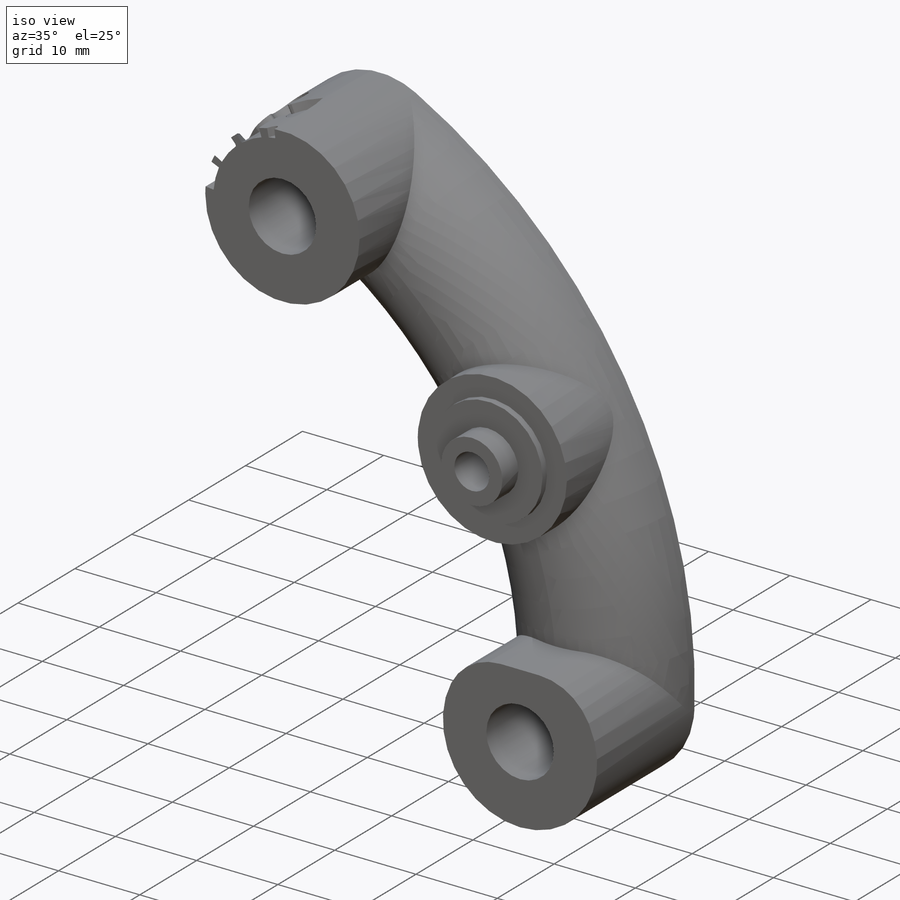
[diagram: iso view]
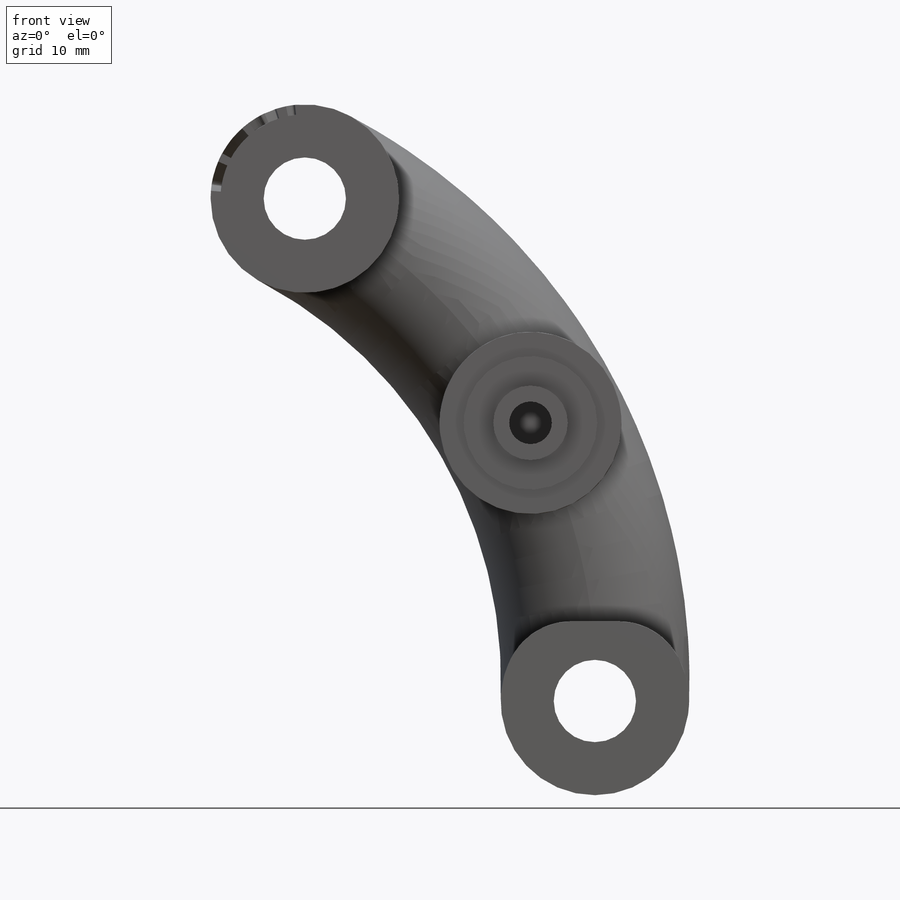
[diagram: front view]
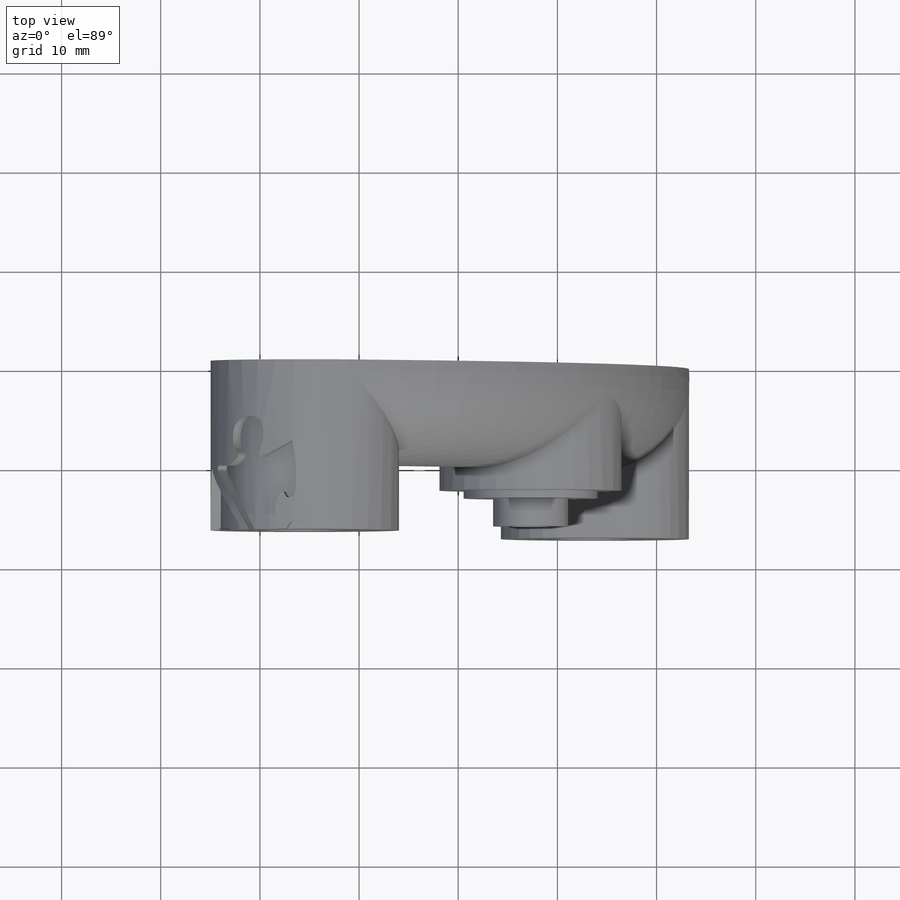
[diagram: top view]
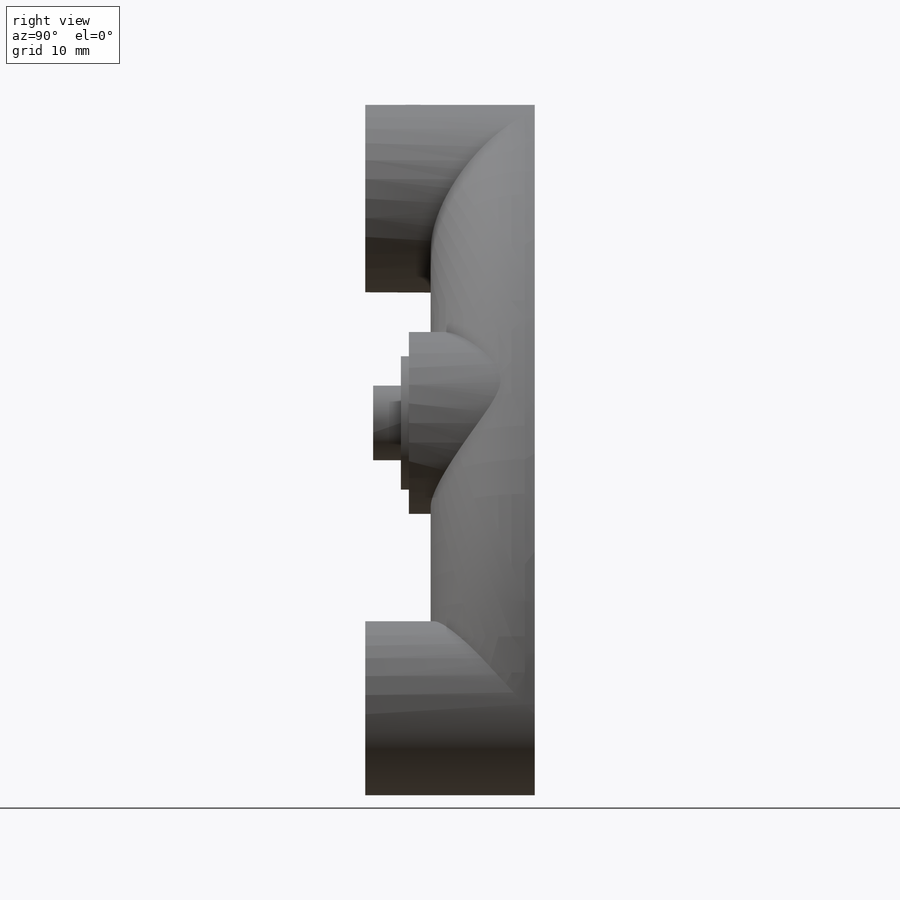
[diagram: right view]
SOLIDWORKS PART (.sldprt)
format: sldprt  version: not decoded by parser v0  size: 604,160 bytes
history: native  units: mm
features: sketch x16, plane x4, cut_extrude x2, material x1, extrude x1 (+16 scaffold rows collapsed; 3 parser-record rows omitted)
feature tree (43):
  scaffold x16  (default folders/planes/origin — collapsed)
  material  "Material <not specified>"
  plane  "Front Plane-Y_Idler_Rightx1"
  plane  "Top Plane-Y_Idler_Rightx1"
  plane  "Right Plane-Y_Idler_Rightx1"
  plane  "Plane1-Y_Idler_Rightx1"
  sketch  "Sketch1-Y_Idler_Rightx1"  dims[D1=~28.040035mm]
  sketch  "Sketch4-Y_Idler_Rightx1"  dims[D1=20.0mm]
  sketch  "Sketch5-Y_Idler_Rightx1"  dims[D1=~5.06759mm]
  sketch  "Sketch6-Y_Idler_Rightx1"  dims[D1=~5.103949mm]
  sketch  "Sketch7-Y_Idler_Rightx1"  dims[D1=~3.946397mm]
  sketch  "Sketch8-Y_Idler_Rightx1"  dims[D1=3.7mm]
  sketch  "Sketch9-Y_Idler_Rightx1"
  sketch  "Sketch10-Y_Idler_Rightx1"  dims[D1=0.44mm D2=0.88mm]
  sketch  "Sketch11-Y_Idler_Rightx1"
  sketch  "Sketch17-Y_Idler_Rightx1"  dims[D1=0.0mm]
  sketch  "Sketch18-Y_Idler_Rightx1"  dims[D1=0.0mm]
  sketch  "Sketch19-Y_Idler_Rightx1"  dims[D1=0.0mm D2=0.0mm]
  parser-record x3  (decoder bookkeeping rows leaked as tree rows — omitted from the tree; the rows remain in map.json)
  sketch  "Sketch1"  dims[D1=7.5mm]
  cut_extrude  "Cut-Extrude1"  [1 undecoded]
  sketch  "Sketch17"
  extrude  "Boss-Extrude1"  Depth=1mm
  sketch  "Sketch20"  dims[c1.D1=0.0mm c1.D2=0.0mm c2.D1=1.0mm]
  sketch  "Sketch21"  dims[D1=0.0mm]
  cut_extrude  "Cut-Extrude2"  Depth=1mm
decode coverage: 15 of 19 modeling features carry decoded parameters
note: ~ marks probable driven/reference dimensions
note: 1 parameter value undecoded
note: suppression state not decoded; provenance and decode notes live in map.json
